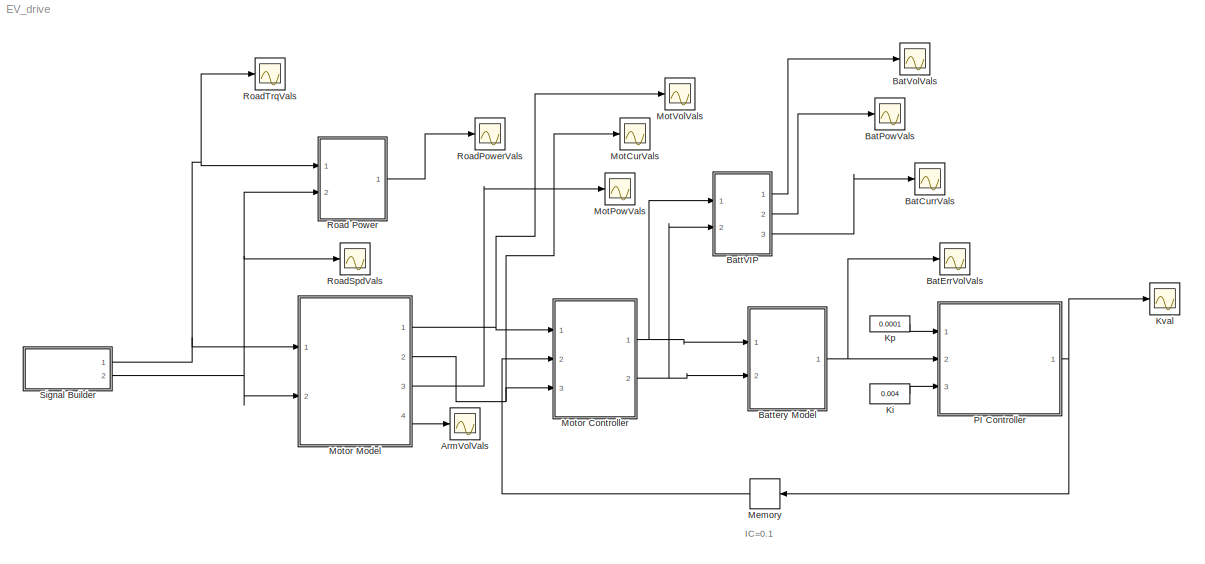
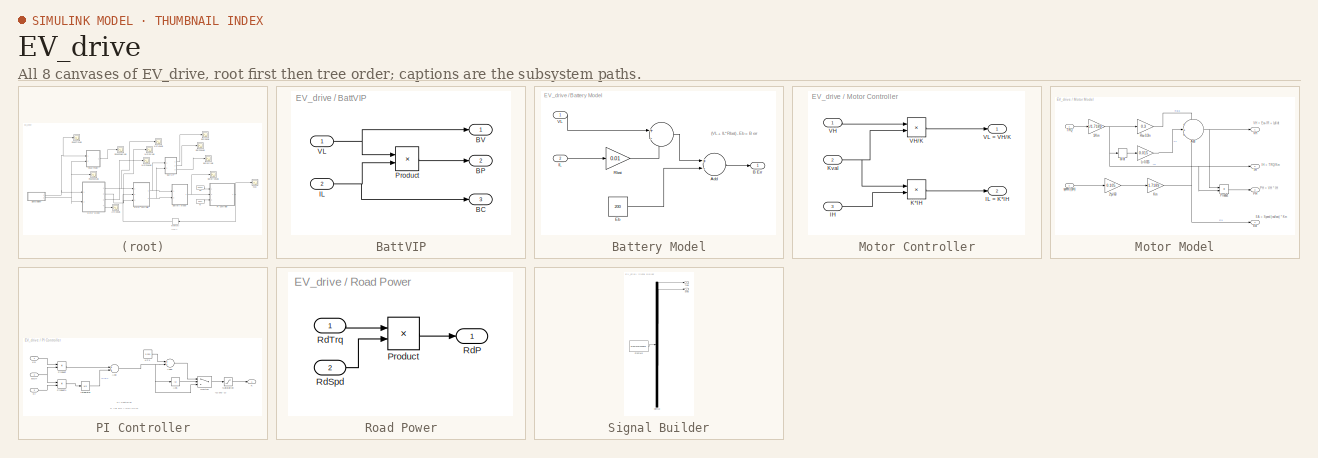
[diagram: thumbnail index - all 8 canvases of the model, root first then tree order]
MODEL EV_drive
KIND model
BLOCK [Scope] ArmVolVals
  Ports = [1]
  SID = 138
  ScopeSpecificationString = Simulink.scopes.TimeScopeBlockCfg('CurrentConfiguration', extmgr.ConfigurationSet(extmgr.Configuration('Core','General UI',true),extmgr.Configuration('Core','Source UI',true),extmgr.Configuration('Sources','WiredSimulink',true,'DataLoggingVariableName','ScopeData2','DataLoggingLimitDataPoints',true,'DataLoggingSaveFormat','Array','DataLoggingDecimation','1','DataLoggingDecimateData',true),extmgr.C...<+1508ch>
BLOCK [Scope] BatCurrVals
  Ports = [1]
  SID = 129
  ScopeSpecificationString = Simulink.scopes.TimeScopeBlockCfg('CurrentConfiguration', extmgr.ConfigurationSet(extmgr.Configuration('Core','General UI',true),extmgr.Configuration('Core','Source UI',true),extmgr.Configuration('Sources','WiredSimulink',true,'DataLoggingVariableName','ScopeData9','DataLoggingLimitDataPoints',true,'DataLoggingSaveFormat','Array','DataLoggingDecimation','1','DataLoggingDecimateData',true),extmgr.C...<+1539ch>
BLOCK [Scope] BatErrVolVals
  Ports = [1]
  SID = 150
  ScopeSpecificationString = Simulink.scopes.TimeScopeBlockCfg('CurrentConfiguration', extmgr.ConfigurationSet(extmgr.Configuration('Core','General UI',true),extmgr.Configuration('Core','Source UI',true),extmgr.Configuration('Sources','WiredSimulink',true,'DataLoggingVariableName','ScopeData1','DataLoggingLimitDataPoints',true,'DataLoggingSaveFormat','Array','DataLoggingDecimation','1','DataLoggingDecimateData',true),extmgr.C...<+1537ch>
BLOCK [Scope] BatPowVals
  Ports = [1]
  SID = 128
  ScopeSpecificationString = Simulink.scopes.TimeScopeBlockCfg('CurrentConfiguration', extmgr.ConfigurationSet(extmgr.Configuration('Core','General UI',true),extmgr.Configuration('Core','Source UI',true),extmgr.Configuration('Sources','WiredSimulink',true,'DataLoggingVariableName','ScopeData8','DataLoggingLimitDataPoints',true,'DataLoggingSaveFormat','Array','DataLoggingDecimation','1','DataLoggingDecimateData',true),extmgr.C...<+1555ch>
BLOCK [Scope] BatVolVals
  Ports = [1]
  SID = 127
  ScopeSpecificationString = Simulink.scopes.TimeScopeBlockCfg('CurrentConfiguration', extmgr.ConfigurationSet(extmgr.Configuration('Core','General UI',true),extmgr.Configuration('Core','Source UI',true),extmgr.Configuration('Sources','WiredSimulink',true,'DataLoggingVariableName','ScopeData7','DataLoggingLimitDataPoints',true,'DataLoggingSaveFormat','Array','DataLoggingDecimation','1','DataLoggingDecimateData',true),extmgr.C...<+1549ch>
BLOCK [SubSystem] BattVIP
  Ports = [2, 3]
  RequestExecContextInheritance = off
  SID = 95
  Variant = off
BLOCK [Outport] BattVIP/BC
  IconDisplay = Port number
  Port = 3
  SID = 100
BLOCK [Outport] BattVIP/BP
  IconDisplay = Port number
  Port = 2
  SID = 99
BLOCK [Outport] BattVIP/BV
  IconDisplay = Port number
  SID = 98
BLOCK [Inport] BattVIP/IL
  IconDisplay = Port number
  Port = 2
  SID = 97
BLOCK [Product] BattVIP/Product
  InputSameDT = off
  OutDataTypeStr = Inherit: Inherit via internal rule
  Ports = [2, 1]
  RndMeth = Floor
  SID = 91
  SaturateOnIntegerOverflow = off
BLOCK [Inport] BattVIP/VL
  IconDisplay = Port number
  SID = 96
BLOCK [SubSystem] Battery Model
  Ports = [2, 1]
  RequestExecContextInheritance = off
  SID = 51
  Variant = off
BLOCK [Sum] Battery Model/     
  IconShape = round
  InputSameDT = off
  Inputs = +-
  OutDataTypeStr = Inherit: Inherit via internal rule
  Ports = [2, 1]
  SID = 48
  SaturateOnIntegerOverflow = off
BLOCK [Sum] Battery Model/Add
  InputSameDT = off
  Inputs = +-
  OutDataTypeStr = Inherit: Inherit via internal rule
  Ports = [2, 1]
  SID = 47
  SaturateOnIntegerOverflow = off
BLOCK [Outport] Battery Model/B Err
  IconDisplay = Port number
  SID = 54
BLOCK [Constant] Battery Model/Eb
  SID = 45
  Value = 200
BLOCK [Inport] Battery Model/IL
  IconDisplay = Port number
  Port = 2
  SID = 53
BLOCK [Gain] Battery Model/Rbat
  Gain = 0.01
  OutDataTypeStr = Inherit: Inherit via internal rule
  ParamDataTypeStr = Inherit: Inherit via internal rule
  SID = 46
  SaturateOnIntegerOverflow = off
BLOCK [Inport] Battery Model/VL
  IconDisplay = Port number
  SID = 52
BLOCK [Constant] Ki
  SID = 105
  Value = 0.004
BLOCK [Constant] Kp
  SID = 104
  Value = 0.0001
BLOCK [Scope] Kval
  Ports = [1]
  SID = 108
  ScopeSpecificationString = Simulink.scopes.TimeScopeBlockCfg('CurrentConfiguration', extmgr.ConfigurationSet(extmgr.Configuration('Core','General UI',true),extmgr.Configuration('Core','Source UI',true),extmgr.Configuration('Sources','WiredSimulink',true,'DataLoggingVariableName','ScopeData3','DataLoggingLimitDataPoints',true,'DataLoggingSaveFormat','Array','DataLoggingDecimation','1','DataLoggingDecimateData',true),extmgr.C...<+1549ch>
BLOCK [Memory] Memory
  SID = 106
  X0 = 0.1
BLOCK [Scope] MotCurVals
  Ports = [1]
  SID = 125
  ScopeSpecificationString = Simulink.scopes.TimeScopeBlockCfg('CurrentConfiguration', extmgr.ConfigurationSet(extmgr.Configuration('Core','General UI',true),extmgr.Configuration('Core','Source UI',true),extmgr.Configuration('Sources','WiredSimulink',true,'DataLoggingVariableName','ScopeData5','DataLoggingLimitDataPoints',true,'DataLoggingSaveFormat','Array','DataLoggingDecimation','1','DataLoggingDecimateData',true),extmgr.C...<+1540ch>
BLOCK [Scope] MotPowVals
  Ports = [1]
  SID = 126
  ScopeSpecificationString = Simulink.scopes.TimeScopeBlockCfg('CurrentConfiguration', extmgr.ConfigurationSet(extmgr.Configuration('Core','General UI',true),extmgr.Configuration('Core','Source UI',true),extmgr.Configuration('Sources','WiredSimulink',true,'DataLoggingVariableName','ScopeData6','DataLoggingLimitDataPoints',true,'DataLoggingSaveFormat','Array','DataLoggingDecimation','1','DataLoggingDecimateData',true),extmgr.C...<+1559ch>
BLOCK [Scope] MotVolVals
  Ports = [1]
  SID = 124
  ScopeSpecificationString = Simulink.scopes.TimeScopeBlockCfg('CurrentConfiguration', extmgr.ConfigurationSet(extmgr.Configuration('Core','General UI',true),extmgr.Configuration('Core','Source UI',true),extmgr.Configuration('Sources','WiredSimulink',true,'DataLoggingVariableName','ScopeData4','DataLoggingLimitDataPoints',true,'DataLoggingSaveFormat','Array','DataLoggingDecimation','1','DataLoggingDecimateData',true),extmgr.C...<+1553ch>
BLOCK [SubSystem] Motor Controller
  Ports = [3, 2]
  RequestExecContextInheritance = off
  SID = 37
  Variant = off
BLOCK [Inport] Motor Controller/IH
  IconDisplay = Port number
  Port = 3
  SID = 40
BLOCK [Outport] Motor Controller/IL = K*IH
  IconDisplay = Port number
  Port = 2
  SID = 42
BLOCK [Product] Motor Controller/K*IH
  InputSameDT = off
  OutDataTypeStr = Inherit: Inherit via internal rule
  Ports = [2, 1]
  RndMeth = Floor
  SID = 35
  SaturateOnIntegerOverflow = off
BLOCK [Inport] Motor Controller/Kval
  IconDisplay = Port number
  Port = 2
  SID = 39
BLOCK [Inport] Motor Controller/VH
  IconDisplay = Port number
  SID = 38
BLOCK [Product] Motor Controller/VH//K
  InputSameDT = off
  Inputs = */
  OutDataTypeStr = Inherit: Inherit via internal rule
  Ports = [2, 1]
  RndMeth = Floor
  SID = 36
  SaturateOnIntegerOverflow = off
BLOCK [Outport] Motor Controller/VL = VH//K
  IconDisplay = Port number
  SID = 41
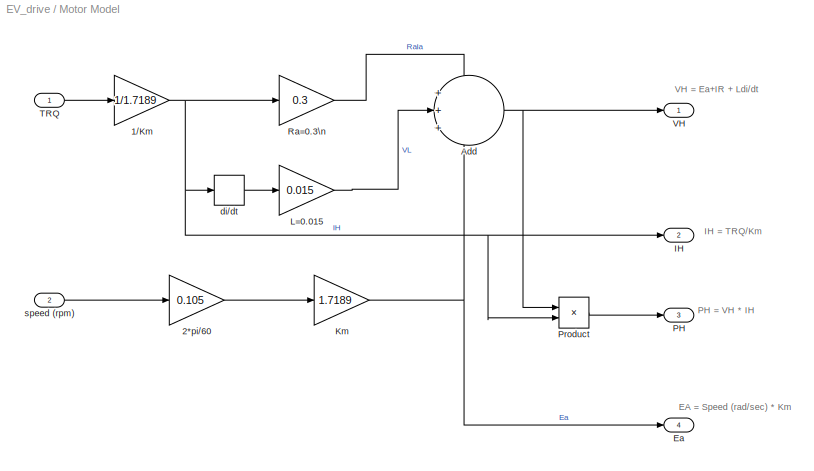
BLOCK [SubSystem] Motor Model
  Ports = [2, 4]
  RequestExecContextInheritance = off
  SID = 15
  Variant = off
BLOCK [Sum] Motor Model/            Add
  IconShape = round
  InputSameDT = off
  Inputs = +++
  OutDataTypeStr = Inherit: Inherit via internal rule
  OutMax = [19]
  OutMin = [3]
  Ports = [3, 1]
  SID = 9
  SaturateOnIntegerOverflow = off
BLOCK [Gain] Motor Model/1//Km
  Gain = 1/1.7189
  OutDataTypeStr = Inherit: Inherit via internal rule
  ParamDataTypeStr = Inherit: Inherit via internal rule
  SID = 1
  SaturateOnIntegerOverflow = off
BLOCK [Gain] Motor Model/2*pi//60
  Gain = 0.105
  OutDataTypeStr = Inherit: Inherit via internal rule
  ParamDataTypeStr = Inherit: Inherit via internal rule
  SID = 7
  SaturateOnIntegerOverflow = off
BLOCK [Outport] Motor Model/Ea
  IconDisplay = Port number
  Port = 4
  SID = 21
BLOCK [Outport] Motor Model/IH
  IconDisplay = Port number
  Port = 2
  SID = 19
BLOCK [Gain] Motor Model/Km
  Gain = 1.7189
  OutDataTypeStr = Inherit: Inherit via internal rule
  OutMax = [9]
  OutMin = [1]
  ParamDataTypeStr = Inherit: Inherit via internal rule
  SID = 8
  SaturateOnIntegerOverflow = off
BLOCK [Gain] Motor Model/L=0.015
  Gain = 0.015
  OutDataTypeStr = Inherit: Inherit via internal rule
  ParamDataTypeStr = Inherit: Inherit via internal rule
  SID = 4
  SaturateOnIntegerOverflow = off
BLOCK [Outport] Motor Model/PH
  IconDisplay = Port number
  Port = 3
  SID = 20
BLOCK [Product] Motor Model/Product
  InputSameDT = off
  OutDataTypeStr = Inherit: Inherit via internal rule
  Ports = [2, 1]
  RndMeth = Floor
  SID = 14
  SaturateOnIntegerOverflow = off
BLOCK [Gain] Motor Model/Ra=0.3\n
  Gain = 0.3
  OutDataTypeStr = Inherit: Inherit via internal rule
  ParamDataTypeStr = Inherit: Inherit via internal rule
  SID = 5
  SaturateOnIntegerOverflow = off
BLOCK [Inport] Motor Model/TRQ
  IconDisplay = Port number
  SID = 16
BLOCK [Outport] Motor Model/VH
  IconDisplay = Port number
  SID = 18
BLOCK [Derivative] Motor Model/di//dt
  SID = 3
BLOCK [Inport] Motor Model/speed (rpm)
  IconDisplay = Port number
  Port = 2
  SID = 17
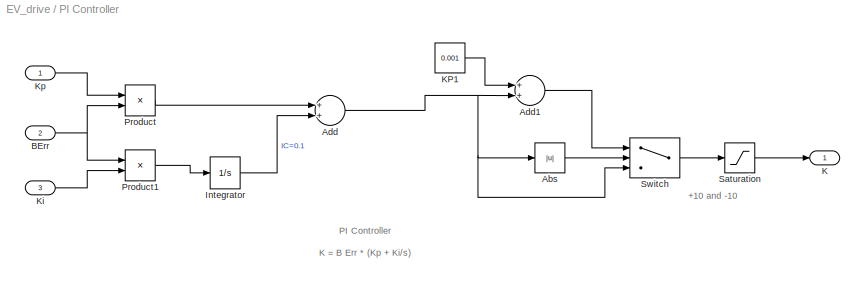
BLOCK [SubSystem] PI Controller
  Ports = [3, 1]
  RequestExecContextInheritance = off
  SID = 71
  Variant = off
BLOCK [Abs] PI Controller/Abs
  SID = 62
  SaturateOnIntegerOverflow = off
BLOCK [Sum] PI Controller/Add
  InputSameDT = off
  OutDataTypeStr = Inherit: Inherit via internal rule
  Ports = [2, 1]
  SID = 61
  SaturateOnIntegerOverflow = off
BLOCK [Sum] PI Controller/Add1
  InputSameDT = off
  OutDataTypeStr = Inherit: Inherit via internal rule
  Ports = [2, 1]
  SID = 64
  SaturateOnIntegerOverflow = off
BLOCK [Inport] PI Controller/BErr
  IconDisplay = Port number
  Port = 2
  SID = 73
BLOCK [Integrator] PI Controller/Integrator
  IgnoreLimit = on
  InitialCondition = 0.1
  LimitOutput = on
  Ports = [1, 1]
  SID = 60
BLOCK [Outport] PI Controller/K
  IconDisplay = Port number
  SID = 75
BLOCK [Constant] PI Controller/KP1
  SID = 63
  Value = 0.001
BLOCK [Inport] PI Controller/Ki
  IconDisplay = Port number
  Port = 3
  SID = 74
BLOCK [Inport] PI Controller/Kp
  IconDisplay = Port number
  SID = 72
BLOCK [Product] PI Controller/Product
  InputSameDT = off
  OutDataTypeStr = Inherit: Inherit via internal rule
  Ports = [2, 1]
  RndMeth = Floor
  SID = 58
  SaturateOnIntegerOverflow = off
BLOCK [Product] PI Controller/Product1
  InputSameDT = off
  OutDataTypeStr = Inherit: Inherit via internal rule
  Ports = [2, 1]
  RndMeth = Floor
  SID = 59
  SaturateOnIntegerOverflow = off
BLOCK [Saturate] PI Controller/Saturation
  InputPortMap = u0
  LowerLimit = -10
  Ports = [1, 1]
  SID = 66
  UpperLimit = +10
BLOCK [Switch] PI Controller/Switch
  Criteria = u2 ~= 0
  InputSameDT = off
  SID = 65
  SaturateOnIntegerOverflow = off
BLOCK [SubSystem] Road Power
  Ports = [2, 1]
  RequestExecContextInheritance = off
  SID = 85
  Variant = off
BLOCK [Product] Road Power/Product
  InputSameDT = off
  OutDataTypeStr = Inherit: Inherit via internal rule
  Ports = [2, 1]
  RndMeth = Floor
  SID = 81
  SaturateOnIntegerOverflow = off
BLOCK [Outport] Road Power/RdP
  IconDisplay = Port number
  SID = 88
BLOCK [Inport] Road Power/RdSpd
  IconDisplay = Port number
  Port = 2
  SID = 87
BLOCK [Inport] Road Power/RdTrq
  IconDisplay = Port number
  SID = 86
BLOCK [Scope] RoadPowerVals
  Ports = [1]
  SID = 120
  ScopeSpecificationString = Simulink.scopes.TimeScopeBlockCfg('CurrentConfiguration', extmgr.ConfigurationSet(extmgr.Configuration('Core','General UI',true),extmgr.Configuration('Core','Source UI',true),extmgr.Configuration('Sources','WiredSimulink',true,'DataLoggingVariableName','ScopeData1','DataLoggingLimitDataPoints',true,'DataLoggingSaveFormat','Array','DataLoggingDecimation','1','DataLoggingDecimateData',true),extmgr.C...<+1560ch>
BLOCK [Scope] RoadSpdVals
  Ports = [1]
  SID = 123
  ScopeSpecificationString = Simulink.scopes.TimeScopeBlockCfg('CurrentConfiguration', extmgr.ConfigurationSet(extmgr.Configuration('Core','General UI',true),extmgr.Configuration('Core','Source UI',true),extmgr.Configuration('Sources','WiredSimulink',true,'DataLoggingVariableName','ScopeData3'),extmgr.Configuration('Visuals','Time Domain',true,'SerializedDisplays',{struct('MinYLimReal','-375.00000','MaxYLimReal','3375.00000',...<+1421ch>
BLOCK [Scope] RoadTrqVals
  Ports = [1]
  SID = 122
  ScopeSpecificationString = Simulink.scopes.TimeScopeBlockCfg('CurrentConfiguration', extmgr.ConfigurationSet(extmgr.Configuration('Core','General UI',true),extmgr.Configuration('Core','Source UI',true),extmgr.Configuration('Sources','WiredSimulink',true,'DataLoggingVariableName','ScopeData2'),extmgr.Configuration('Visuals','Time Domain',true,'SerializedDisplays',{struct('MinYLimReal','-288.75','MaxYLimReal','398.75','YLabel...<+1399ch>
BLOCK [SubSystem] Signal Builder
  ClipboardFcn = sigbuilder_block('clipboard');
  CloseFcn = sigbuilder_block('close');
  ContinueFcn = sigbuilder_block('continue');
  CopyFcn = sigbuilder_block('copy');
  DeleteFcn = sigbuilder_block('delete');
  LoadFcn = sigbuilder_block('load');
  MaskHideContents = on
  ModelCloseFcn = sigbuilder_block('modelClose');
  NameChangeFcn = sigbuilder_block('namechange');
  OpenFcn = sigbuilder_block('open',[3 30 1018.5 447.75 ]);
  PauseFcn = sigbuilder_block('pause');
  Ports = [0, 2]
  PreSaveFcn = sigbuilder_block('preSave');
  RequestExecContextInheritance = off
  SID = 149
  StartFcn = sigbuilder_block('start');
  StopFcn = sigbuilder_block('stop');
  Tag = STV Subsys
  Variant = off
BLOCK [Demux] Signal Builder/Demux
  Outputs = 2
  Ports = [1, 2]
  SID = 149:1
  Tag = STV Demux
BLOCK [FromWorkspace] Signal Builder/FromWs
  SID = 149:2
  SampleTime = 0
  SigBuilderData = DataTag0
  Tag = STV FromWs
  VariableName = tuvar
  VnvData = DataTag1
  ZeroCross = on
BLOCK [Outport] Signal Builder/Svals
  IconDisplay = Port number
  Port = 2
  SID = 149:4
  Tag = STV Outport
BLOCK [Outport] Signal Builder/Tvals
  IconDisplay = Port number
  SID = 149:3
  Tag = STV Outport
ANNOTATION (root): IC=0.1
ANNOTATION Battery Model: (VL + IL*Rbat) - Eb = B err
ANNOTATION Battery Model: \n\n\n\n\n\nEb(calculated) - Eb (actual)
ANNOTATION Motor Model: EA = Speed (rad/sec) * Km
ANNOTATION Motor Model: IH = TRQ/Km
ANNOTATION Motor Model: PH = VH * IH
ANNOTATION Motor Model: VH = Ea+IR + Ldi/dt
ANNOTATION PI Controller: +10 and -10
ANNOTATION PI Controller: PI Controller\n\nK = B Err * (Kp + Ki/s)
NET BattVIP/IL:1 -> BattVIP/BC:1, BattVIP/Product:2
LINE BattVIP/Product:1 -> BattVIP/BP:1
NET BattVIP/VL:1 -> BattVIP/BV:1, BattVIP/Product:1
LINE BattVIP:1 -> BatVolVals:1
LINE BattVIP:2 -> BatPowVals:1
LINE BattVIP:3 -> BatCurrVals:1
LINE Battery Model/     :1 -> Battery Model/Add:1
LINE Battery Model/Add:1 -> Battery Model/B Err:1
LINE Battery Model/Eb:1 -> Battery Model/Add:2
LINE Battery Model/IL:1 -> Battery Model/Rbat:1
LINE Battery Model/Rbat:1 -> Battery Model/     :2
LINE Battery Model/VL:1 -> Battery Model/     :1
NET Battery Model:1 -> BatErrVolVals:1, PI Controller:2
LINE Ki:1 -> PI Controller:3
LINE Kp:1 -> PI Controller:1
LINE Memory:1 -> Motor Controller:2
LINE Motor Controller/IH:1 -> Motor Controller/K*IH:2
LINE Motor Controller/K*IH:1 -> Motor Controller/IL = K*IH:1
NET Motor Controller/Kval:1 -> Motor Controller/K*IH:1, Motor Controller/VH//K:2
LINE Motor Controller/VH//K:1 -> Motor Controller/VL = VH//K:1
LINE Motor Controller/VH:1 -> Motor Controller/VH//K:1
NET Motor Controller:1 -> BattVIP:1, Battery Model:1
NET Motor Controller:2 -> BattVIP:2, Battery Model:2
NET Motor Model/            Add:1 -> Motor Model/Product:1, Motor Model/VH:1
NET Motor Model/1//Km:1 -> Motor Model/IH:1, Motor Model/Product:2, Motor Model/Ra=0.3\n:1, Motor Model/di//dt:1
LINE Motor Model/2*pi//60:1 -> Motor Model/Km:1
NET Motor Model/Km:1 -> Motor Model/            Add:3, Motor Model/Ea:1
LINE Motor Model/L=0.015:1 -> Motor Model/            Add:2
LINE Motor Model/Product:1 -> Motor Model/PH:1
LINE Motor Model/Ra=0.3\n:1 -> Motor Model/            Add:1
LINE Motor Model/TRQ:1 -> Motor Model/1//Km:1
LINE Motor Model/di//dt:1 -> Motor Model/L=0.015:1
LINE Motor Model/speed (rpm):1 -> Motor Model/2*pi//60:1
NET Motor Model:1 -> MotVolVals:1, Motor Controller:1
NET Motor Model:2 -> MotCurVals:1, Motor Controller:3
LINE Motor Model:3 -> MotPowVals:1
LINE Motor Model:4 -> ArmVolVals:1
LINE PI Controller/Abs:1 -> PI Controller/Switch:2
LINE PI Controller/Add1:1 -> PI Controller/Switch:1
NET PI Controller/Add:1 -> PI Controller/Abs:1, PI Controller/Add1:2, PI Controller/Switch:3
NET PI Controller/BErr:1 -> PI Controller/Product1:1, PI Controller/Product:2
LINE PI Controller/Integrator:1 -> PI Controller/Add:2
LINE PI Controller/KP1:1 -> PI Controller/Add1:1
LINE PI Controller/Ki:1 -> PI Controller/Product1:2
LINE PI Controller/Kp:1 -> PI Controller/Product:1
LINE PI Controller/Product1:1 -> PI Controller/Integrator:1
LINE PI Controller/Product:1 -> PI Controller/Add:1
LINE PI Controller/Saturation:1 -> PI Controller/K:1
LINE PI Controller/Switch:1 -> PI Controller/Saturation:1
NET PI Controller:1 -> Kval:1, Memory:1
LINE Road Power/Product:1 -> Road Power/RdP:1
LINE Road Power/RdSpd:1 -> Road Power/Product:2
LINE Road Power/RdTrq:1 -> Road Power/Product:1
LINE Road Power:1 -> RoadPowerVals:1
LINE Signal Builder/Demux:1 -> Signal Builder/Tvals:1
LINE Signal Builder/Demux:2 -> Signal Builder/Svals:1
LINE Signal Builder/FromWs:1 -> Signal Builder/Demux:1
NET Signal Builder:1 -> Motor Model:1, Road Power:1, RoadTrqVals:1
NET Signal Builder:2 -> Motor Model:2, Road Power:2, RoadSpdVals:1
note: NET lines group one-source signal fan-out (src -> all destinations, sorted); 1:1 wires keep LINE
